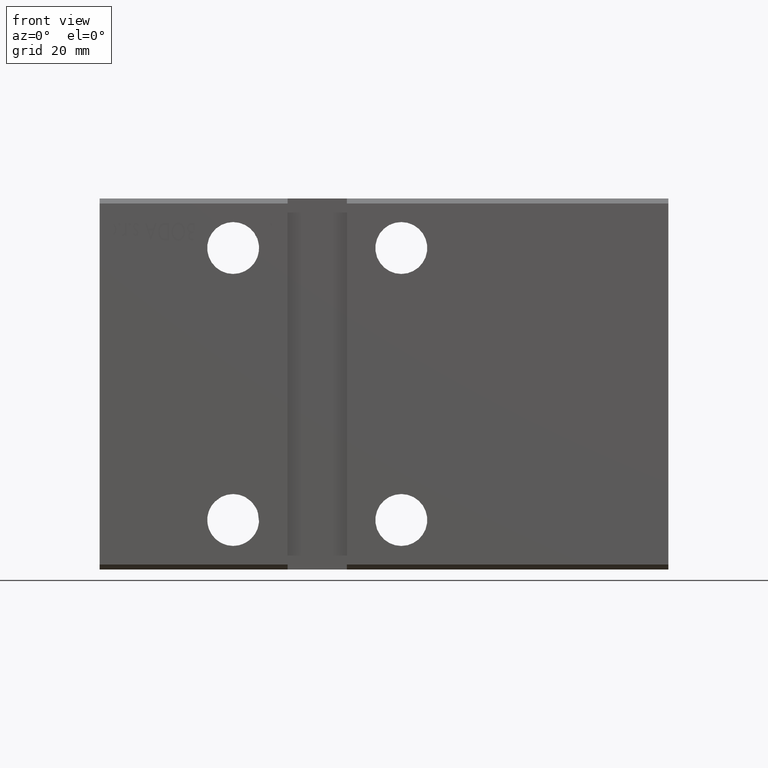
[diagram: clean part render]
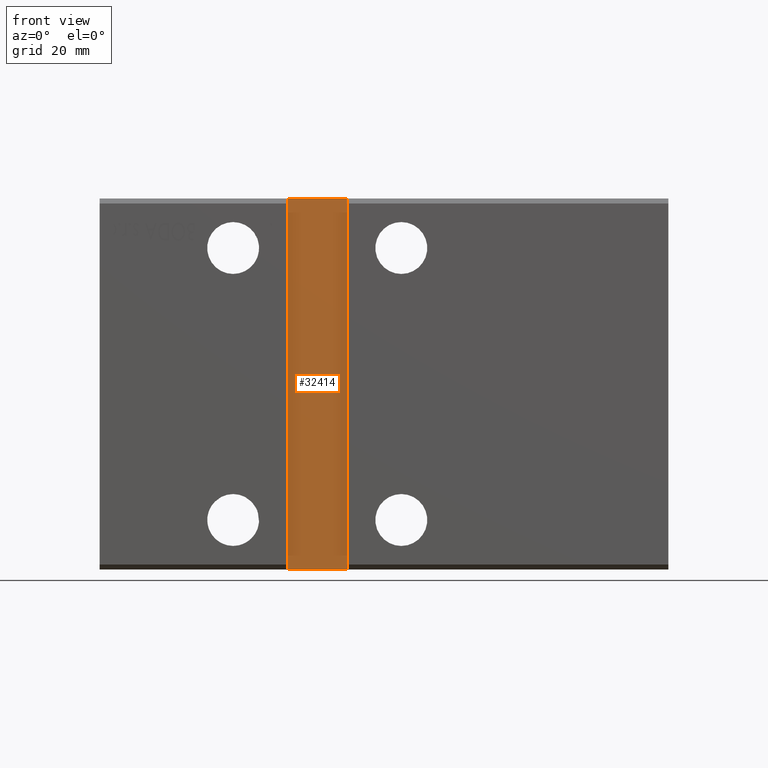
[diagram: same view with one face highlighted and labeled with its STEP entity id]
A machine part, front view. The second image highlights one B-rep face of the part: STEP entity #32414.
In plain terms, the highlighted planar face has unit normal (0, -1, -0).
Its self-contained STEP definition (entity closure, byte-faithful):
#1250 = DIRECTION ( 'NONE',  ( 1.000000000000000000, 0.000000000000000000, 0.000000000000000000 ) ) ;
#2022 = DIRECTION ( 'NONE',  ( 0.000000000000000000, -1.000000000000000000, -9.251858538542971581E-17 ) ) ;
#2434 = EDGE_LOOP ( 'NONE', ( #7968, #30423, #5068, #23537 ) ) ;
#3217 = CARTESIAN_POINT ( 'NONE',  ( 38.00000000000000711, -25.50000000000000355, -37.49999999999999289 ) ) ;
#3685 = CARTESIAN_POINT ( 'NONE',  ( 49.99999999999999289, -25.50000000000000711, 37.50000000000000711 ) ) ;
#5003 = DIRECTION ( 'NONE',  ( 0.000000000000000000, 9.251858538542971581E-17, -1.000000000000000000 ) ) ;
#5068 = ORIENTED_EDGE ( 'NONE', *, *, #16735, .T. ) ;
#5779 = VECTOR ( 'NONE', #23895, 1000.000000000000000 ) ;
#7807 = CARTESIAN_POINT ( 'NONE',  ( 0.000000000000000000, -25.50000000000000355, -2.434119925021425278E-15 ) ) ;
#7968 = ORIENTED_EDGE ( 'NONE', *, *, #30350, .T. ) ;
#8882 = VERTEX_POINT ( 'NONE', #35484 ) ;
#10991 = VERTEX_POINT ( 'NONE', #25493 ) ;
#12414 = EDGE_CURVE ( 'NONE', #33317, #36645, #25788, .T. ) ;
#13815 = VECTOR ( 'NONE', #30649, 1000.000000000000000 ) ;
#16735 = EDGE_CURVE ( 'NONE', #10991, #33317, #21697, .T. ) ;
#20181 = PLANE ( 'NONE',  #26761 ) ;
#20234 = VECTOR ( 'NONE', #1250, 1000.000000000000000 ) ;
#20723 = CARTESIAN_POINT ( 'NONE',  ( 38.00000000000000000, -25.50000000000000711, 37.50000000000000711 ) ) ;
#21697 = LINE ( 'NONE', #36819, #13815 ) ;
#23537 = ORIENTED_EDGE ( 'NONE', *, *, #12414, .T. ) ;
#23895 = DIRECTION ( 'NONE',  ( -1.000000000000000000, -0.000000000000000000, -0.000000000000000000 ) ) ;
#24092 = LINE ( 'NONE', #20723, #5779 ) ;
#24267 = CARTESIAN_POINT ( 'NONE',  ( 50.00000000000000711, -25.50000000000000355, -37.49999999999999289 ) ) ;
#25493 = CARTESIAN_POINT ( 'NONE',  ( 38.00000000000000000, -25.50000000000000711, 37.50000000000000711 ) ) ;
#25788 = LINE ( 'NONE', #37732, #20234 ) ;
#26761 = AXIS2_PLACEMENT_3D ( 'NONE', #7807, #2022, #5003 ) ;
#27982 = VECTOR ( 'NONE', #34407, 1000.000000000000000 ) ;
#30350 = EDGE_CURVE ( 'NONE', #36645, #8882, #31595, .T. ) ;
#30423 = ORIENTED_EDGE ( 'NONE', *, *, #35306, .T. ) ;
#30649 = DIRECTION ( 'NONE',  ( 9.251858538542971581E-17, 9.251858538542971581E-17, -1.000000000000000000 ) ) ;
#31595 = LINE ( 'NONE', #3685, #27982 ) ;
#32414 = ADVANCED_FACE ( 'NONE', ( #35713 ), #20181, .T. ) ;
#33317 = VERTEX_POINT ( 'NONE', #3217 ) ;
#34407 = DIRECTION ( 'NONE',  ( -1.850371707708594316E-16, -9.251858538542971581E-17, 1.000000000000000000 ) ) ;
#35306 = EDGE_CURVE ( 'NONE', #8882, #10991, #24092, .T. ) ;
#35484 = CARTESIAN_POINT ( 'NONE',  ( 49.99999999999999289, -25.50000000000000711, 37.50000000000000711 ) ) ;
#35713 = FACE_OUTER_BOUND ( 'NONE', #2434, .T. ) ;
#36645 = VERTEX_POINT ( 'NONE', #24267 ) ;
#36819 = CARTESIAN_POINT ( 'NONE',  ( 38.00000000000000000, -25.50000000000000711, 37.50000000000000711 ) ) ;
#37732 = CARTESIAN_POINT ( 'NONE',  ( 38.00000000000000711, -25.50000000000000355, -37.49999999999999289 ) ) ;